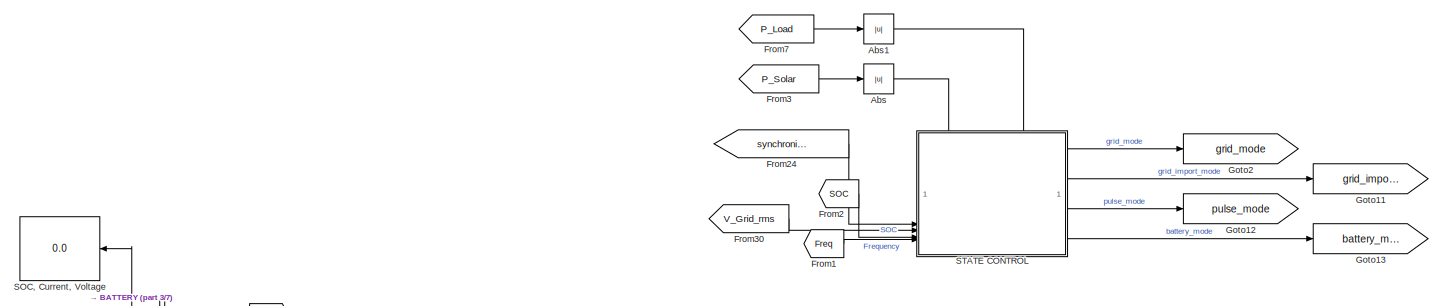
[diagram: root canvas - part 1/7, top center region]
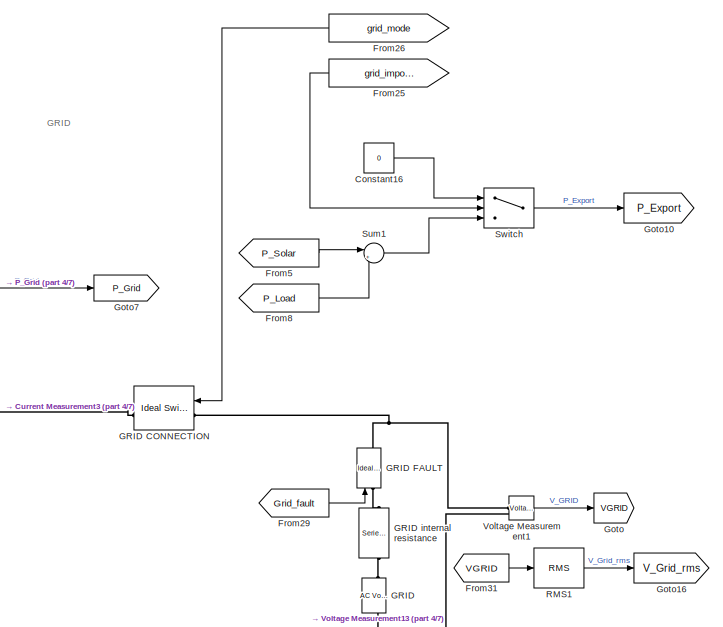
[diagram: root canvas - part 2/7, top right region]
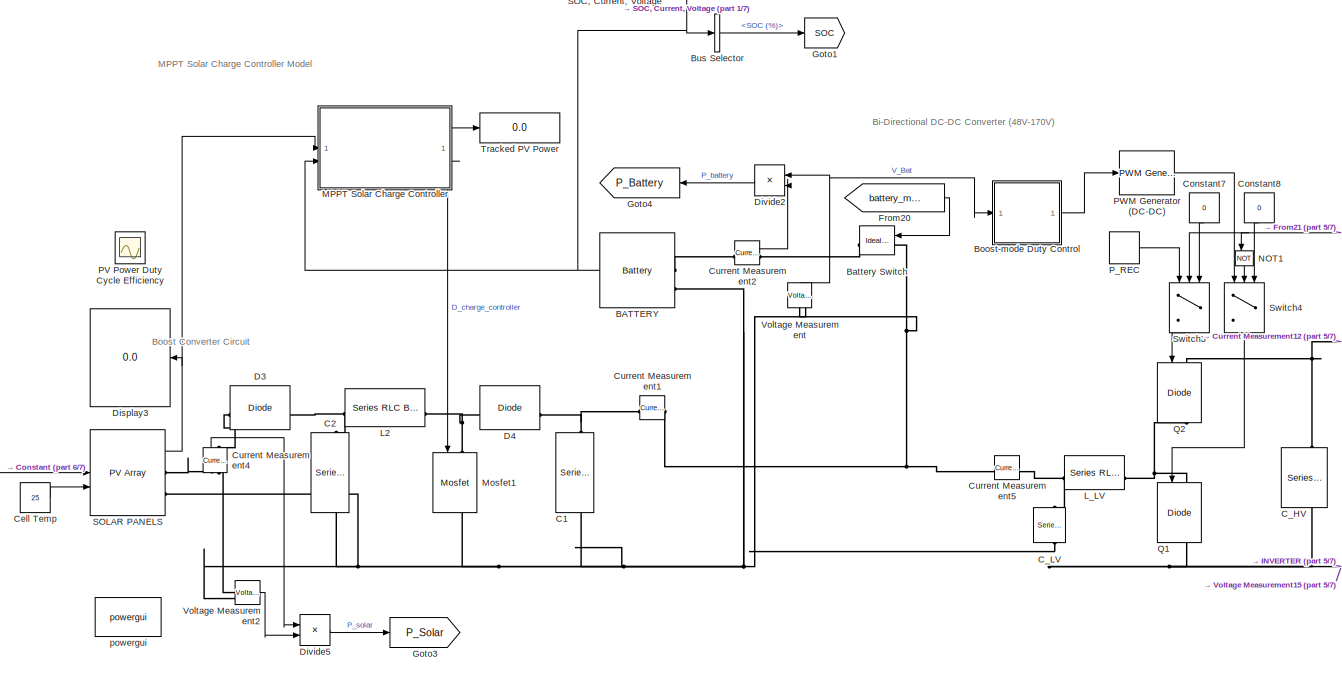
[diagram: root canvas - part 3/7, middle left region]
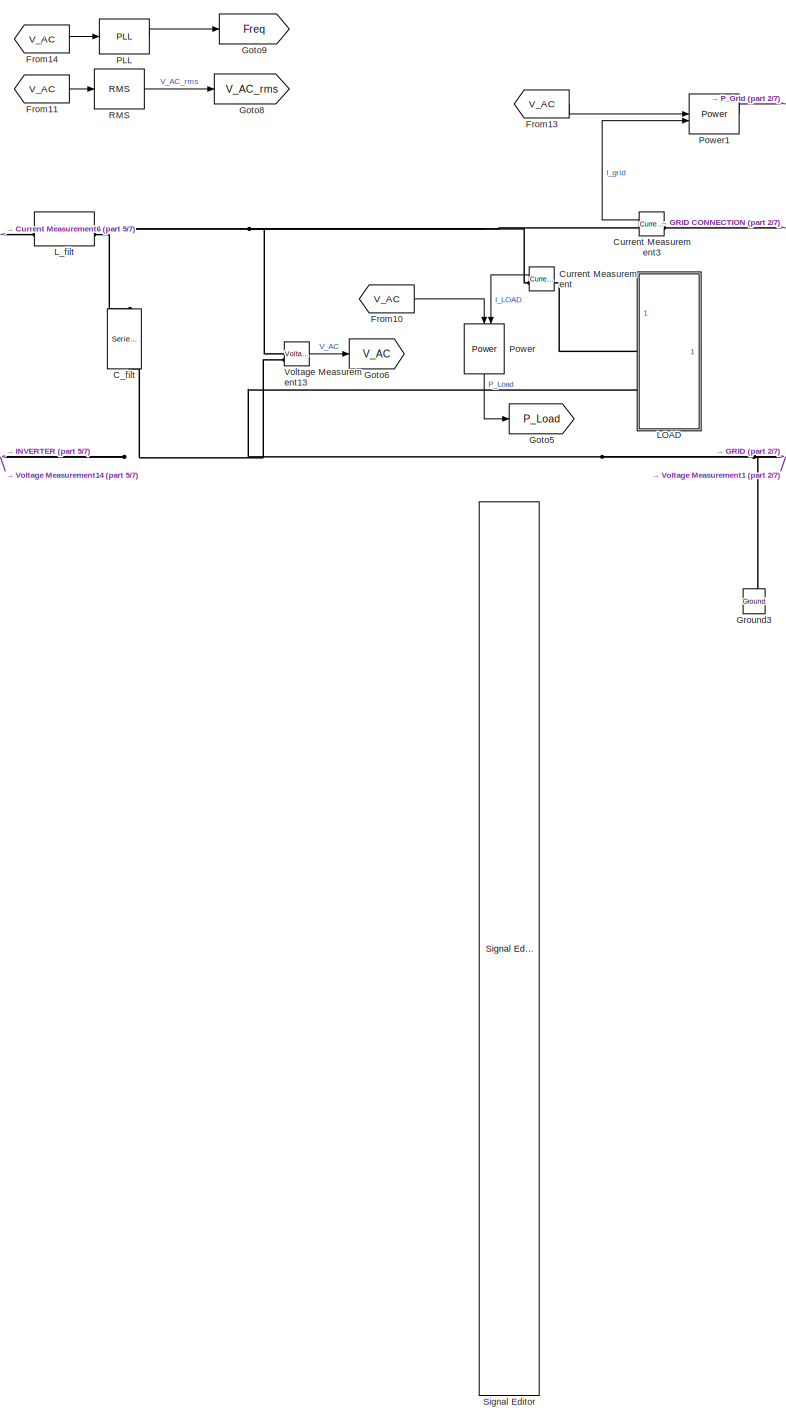
[diagram: root canvas - part 4/7, right side, full height]
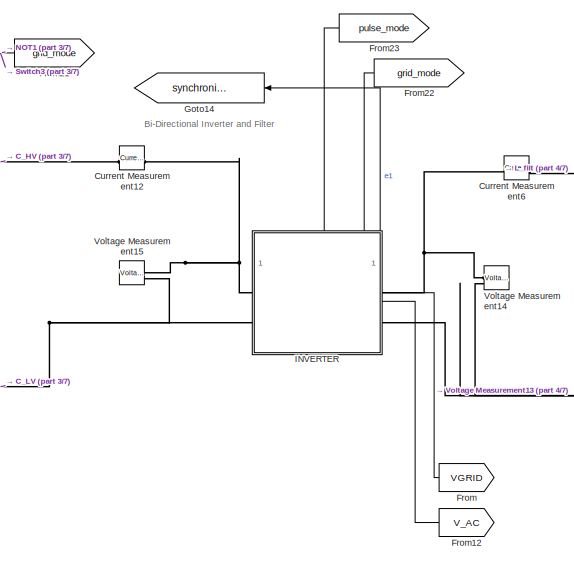
[diagram: root canvas - part 5/7, central region]
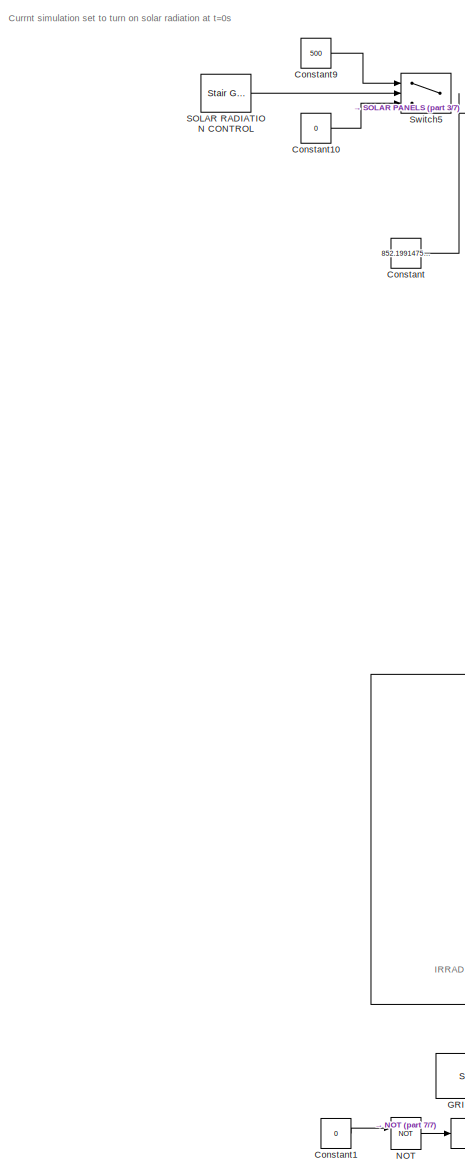
[diagram: root canvas - part 6/7, bottom left region]
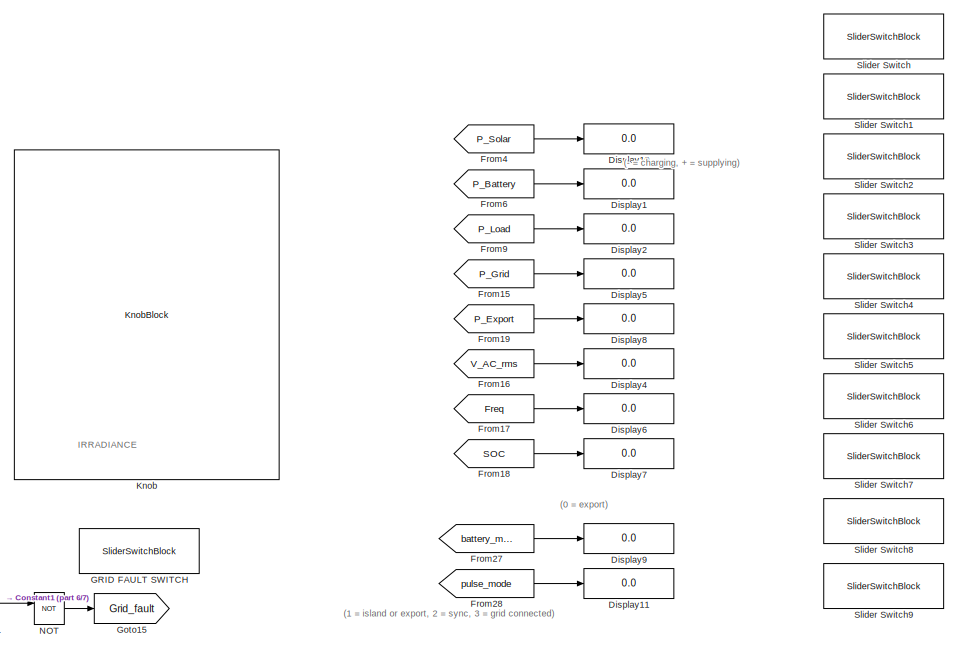
[diagram: root canvas - part 7/7, bottom left region]
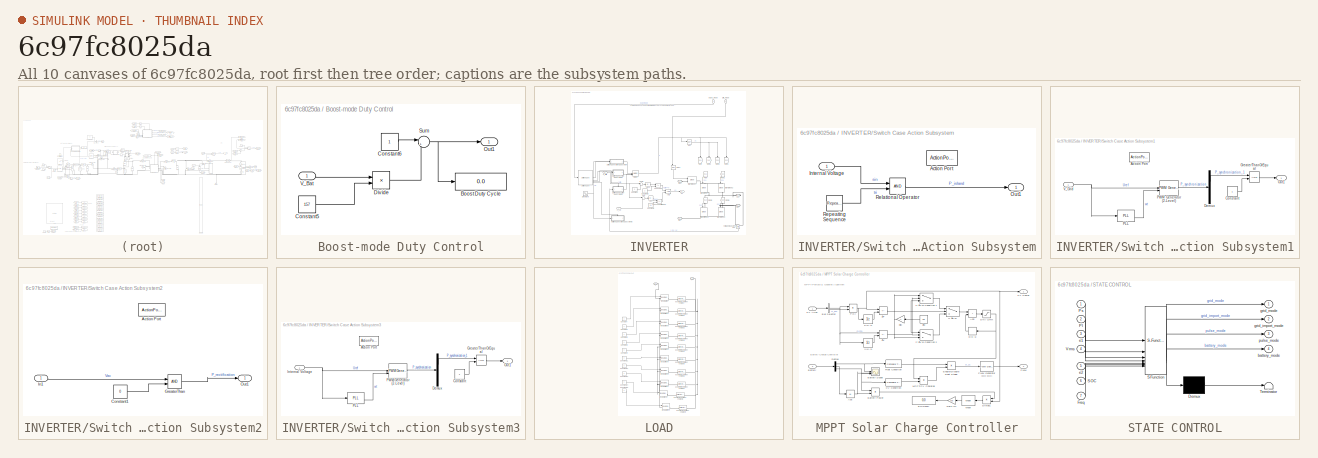
[diagram: thumbnail index - all 10 canvases of the model, root first then tree order]
MODEL slx_6c97fc8025da
KIND model
CONFIG AbsTol = auto
CONFIG EnableMultiTasking = off
CONFIG FixedStep = auto
CONFIG MaxStep = auto
CONFIG MinStep = auto
CONFIG RelTol = 1e-3
CONFIG SampleTimeConstraint = Unconstrained
CONFIG SolverName = VariableStepAuto
CONFIG StartTime = 0.0
CONFIG StopTime = 10.0
BLOCK [Reference]  C1  REF=spsSeriesRLCBranchLib/Series RLC Branch
  LibrarySourceBlock = sps_lib/Passives/Series RLC Branch
  NameLocation = left
  SourceBlock = spsSeriesRLCBranchLib/Series RLC Branch
  SourceType = Series RLC Branch
BLOCK [Abs] Abs
  SaturateOnIntegerOverflow = off
BLOCK [Abs] Abs1
  SaturateOnIntegerOverflow = off
BLOCK [Reference] BATTERY  REF=spsBatteryLib/Battery
  LibrarySourceBlock = electricdrivelib/Extra Sources/Battery
  SourceBlock = spsBatteryLib/Battery
  SourceType = Battery
BLOCK [Reference] Battery Switch  REF=spsIdealSwitchLib/Ideal Switch
  LibrarySourceBlock = sps_lib/Power Electronics/Ideal Switch
  SourceBlock = spsIdealSwitchLib/Ideal Switch
  SourceType = Ideal Switch
BLOCK [SubSystem] Boost-mode Duty Control
BLOCK [Display] Boost-mode Duty Control/Boost Duty Cycle
  Decimation = 1
BLOCK [Constant] Boost-mode Duty Control/Constant5
  Value = 157
BLOCK [Constant] Boost-mode Duty Control/Constant6
BLOCK [Product] Boost-mode Duty Control/Divide
  Inputs = */
BLOCK [Outport] Boost-mode Duty Control/Out1
BLOCK [Sum] Boost-mode Duty Control/Sum
  Inputs = |+-
BLOCK [Inport] Boost-mode Duty Control/V_Bat
BLOCK [BusSelector] Bus Selector
  OutputSignals = SOC (%)
BLOCK [Reference] C2  REF=spsSeriesRLCBranchLib/Series RLC Branch
  LibrarySourceBlock = sps_lib/Passives/Series RLC Branch
  NameLocation = left
  SourceBlock = spsSeriesRLCBranchLib/Series RLC Branch
  SourceType = Series RLC Branch
BLOCK [Reference] C_HV  REF=spsSeriesRLCBranchLib/Series RLC Branch
  LibrarySourceBlock = sps_lib/Passives/Series RLC Branch
  NameLocation = left
  SourceBlock = spsSeriesRLCBranchLib/Series RLC Branch
  SourceType = Series RLC Branch
BLOCK [Reference] C_LV  REF=spsSeriesRLCBranchLib/Series RLC Branch
  LibrarySourceBlock = sps_lib/Passives/Series RLC Branch
  NameLocation = left
  SourceBlock = spsSeriesRLCBranchLib/Series RLC Branch
  SourceType = Series RLC Branch
BLOCK [Reference] C_filt  REF=spsSeriesRLCBranchLib/Series RLC Branch
  LibrarySourceBlock = sps_lib/Passives/Series RLC Branch
  NameLocation = left
  SourceBlock = spsSeriesRLCBranchLib/Series RLC Branch
  SourceType = Series RLC Branch
BLOCK [Constant] Cell Temp
  Value = 25
BLOCK [Constant] Constant
  Value = 852.1991475423177
BLOCK [Constant] Constant1
  Value = 0
BLOCK [Constant] Constant10
  Value = 0
BLOCK [Constant] Constant16
  Value = 0
BLOCK [Constant] Constant7
  NameLocation = left
  Value = 0
BLOCK [Constant] Constant8
  NameLocation = left
  Value = 0
BLOCK [Constant] Constant9
  Value = 500
BLOCK [Reference] Current Measurement  REF=spsCurrentMeasurementLib/Current Measurement
  LibrarySourceBlock = sps_lib/Sensors and Measurements/Current Measurement
  NameLocation = top
  SourceBlock = spsCurrentMeasurementLib/Current Measurement
  SourceType = Current Measurement
  UserDataPersistent = on
BLOCK [Reference] Current Measurement1  REF=spsCurrentMeasurementLib/Current Measurement
  LibrarySourceBlock = sps_lib/Sensors and Measurements/Current Measurement
  SourceBlock = spsCurrentMeasurementLib/Current Measurement
  SourceType = Current Measurement
  UserDataPersistent = on
BLOCK [Reference] Current Measurement12  REF=spsCurrentMeasurementLib/Current Measurement
  LibrarySourceBlock = sps_lib/Sensors and Measurements/Current Measurement
  SourceBlock = spsCurrentMeasurementLib/Current Measurement
  SourceType = Current Measurement
  UserDataPersistent = on
BLOCK [Reference] Current Measurement2  REF=spsCurrentMeasurementLib/Current Measurement
  LibrarySourceBlock = sps_lib/Sensors and Measurements/Current Measurement
  SourceBlock = spsCurrentMeasurementLib/Current Measurement
  SourceType = Current Measurement
  UserDataPersistent = on
BLOCK [Reference] Current Measurement3  REF=spsCurrentMeasurementLib/Current Measurement
  LibrarySourceBlock = sps_lib/Sensors and Measurements/Current Measurement
  NameLocation = top
  SourceBlock = spsCurrentMeasurementLib/Current Measurement
  SourceType = Current Measurement
  UserDataPersistent = on
BLOCK [Reference] Current Measurement4  REF=spsCurrentMeasurementLib/Current Measurement
  LibrarySourceBlock = sps_lib/Sensors and Measurements/Current Measurement
  NameLocation = right
  SourceBlock = spsCurrentMeasurementLib/Current Measurement
  SourceType = Current Measurement
  UserDataPersistent = on
BLOCK [Reference] Current Measurement5  REF=spsCurrentMeasurementLib/Current Measurement
  LibrarySourceBlock = sps_lib/Sensors and Measurements/Current Measurement
  SourceBlock = spsCurrentMeasurementLib/Current Measurement
  SourceType = Current Measurement
  UserDataPersistent = on
BLOCK [Reference] Current Measurement6  REF=spsCurrentMeasurementLib/Current Measurement
  LibrarySourceBlock = sps_lib/Sensors and Measurements/Current Measurement
  SourceBlock = spsCurrentMeasurementLib/Current Measurement
  SourceType = Current Measurement
  UserDataPersistent = on
BLOCK [Reference] D3  REF=spsDiodeLib/Diode
  LibrarySourceBlock = sps_lib/Power Electronics/Diode
  NameLocation = top
  SourceBlock = spsDiodeLib/Diode
  SourceType = Diode
BLOCK [Reference] D4  REF=spsDiodeLib/Diode
  LibrarySourceBlock = sps_lib/Power Electronics/Diode
  SourceBlock = spsDiodeLib/Diode
  SourceType = Diode
BLOCK [Display] Display1
  Decimation = 1
BLOCK [Display] Display10
  Decimation = 1
BLOCK [Display] Display11
  Decimation = 1
BLOCK [Display] Display2
  Decimation = 1
BLOCK [Display] Display3
  Decimation = 1
BLOCK [Display] Display4
  Decimation = 1
BLOCK [Display] Display5
  Decimation = 1
BLOCK [Display] Display6
  Decimation = 1
BLOCK [Display] Display7
  Decimation = 1000
  Format = long
BLOCK [Display] Display8
  Decimation = 1
BLOCK [Display] Display9
  Decimation = 1
BLOCK [Product] Divide2
  Inputs = **
BLOCK [Product] Divide5
  Inputs = **
BLOCK [From] From
  GotoTag = VGRID
  NameLocation = top
BLOCK [From] From1
  GotoTag = Freq
BLOCK [From] From10
  GotoTag = V_AC
BLOCK [From] From11
  GotoTag = V_AC
BLOCK [From] From12
  GotoTag = V_AC
BLOCK [From] From13
  GotoTag = V_AC
BLOCK [From] From14
  GotoTag = V_AC
BLOCK [From] From15
  GotoTag = P_Grid
BLOCK [From] From16
  GotoTag = V_AC_rms
BLOCK [From] From17
  GotoTag = Freq
BLOCK [From] From18
  GotoTag = SOC
BLOCK [From] From19
  GotoTag = P_Export
BLOCK [From] From2
  GotoTag = SOC
BLOCK [From] From20
  GotoTag = battery_mode
BLOCK [From] From21
  GotoTag = grid_mode
BLOCK [From] From22
  GotoTag = grid_mode
BLOCK [From] From23
  GotoTag = pulse_mode
BLOCK [From] From24
  GotoTag = synchronizing_error
BLOCK [From] From25
  GotoTag = grid_import_mode
BLOCK [From] From26
  GotoTag = grid_mode
BLOCK [From] From27
  GotoTag = battery_mode
BLOCK [From] From28
  GotoTag = pulse_mode
BLOCK [From] From29
  GotoTag = Grid_fault
BLOCK [From] From3
  GotoTag = P_Solar
BLOCK [From] From30
  GotoTag = V_Grid_rms
BLOCK [From] From31
  GotoTag = VGRID
BLOCK [From] From4
  GotoTag = P_Solar
BLOCK [From] From5
  GotoTag = P_Solar
BLOCK [From] From6
  GotoTag = P_Battery
BLOCK [From] From7
  GotoTag = P_Load
BLOCK [From] From8
  GotoTag = P_Load
BLOCK [From] From9
  GotoTag = P_Load
BLOCK [Reference] GRID  REF=spsACVoltageSourceLib/AC Voltage Source
  LibrarySourceBlock = sps_lib/Sources/AC Voltage Source
  NameLocation = left
  SourceBlock = spsACVoltageSourceLib/AC Voltage Source
  SourceType = AC Voltage Source
BLOCK [Reference] GRID CONNECTION  REF=spsIdealSwitchLib/Ideal Switch
  LibrarySourceBlock = sps_lib/Power Electronics/Ideal Switch
  SourceBlock = spsIdealSwitchLib/Ideal Switch
  SourceType = Ideal Switch
BLOCK [Reference] GRID FAULT  REF=spsIdealSwitchLib/Ideal Switch
  LibrarySourceBlock = sps_lib/Power Electronics/Ideal Switch
  NameLocation = left
  SourceBlock = spsIdealSwitchLib/Ideal Switch
  SourceType = Ideal Switch
BLOCK [SliderSwitchBlock] GRID FAULT SWITCH
BLOCK [Reference] GRID internal resistance  REF=spsSeriesRLCBranchLib/Series RLC Branch
  LibrarySourceBlock = sps_lib/Passives/Series RLC Branch
  NameLocation = left
  SourceBlock = spsSeriesRLCBranchLib/Series RLC Branch
  SourceType = Series RLC Branch
BLOCK [Goto] Goto
  GotoTag = VGRID
BLOCK [Goto] Goto1
  GotoTag = SOC
BLOCK [Goto] Goto10
  GotoTag = P_Export
BLOCK [Goto] Goto11
  GotoTag = grid_import_mode
BLOCK [Goto] Goto12
  GotoTag = pulse_mode
BLOCK [Goto] Goto13
  GotoTag = battery_mode
BLOCK [Goto] Goto14
  GotoTag = synchronizing_error
BLOCK [Goto] Goto15
  GotoTag = Grid_fault
BLOCK [Goto] Goto16
  GotoTag = V_Grid_rms
BLOCK [Goto] Goto2
  GotoTag = grid_mode
BLOCK [Goto] Goto3
  GotoTag = P_Solar
BLOCK [Goto] Goto4
  GotoTag = P_Battery
BLOCK [Goto] Goto5
  GotoTag = P_Load
BLOCK [Goto] Goto6
  GotoTag = V_AC
BLOCK [Goto] Goto7
  GotoTag = P_Grid
BLOCK [Goto] Goto8
  GotoTag = V_AC_rms
BLOCK [Goto] Goto9
  GotoTag = Freq
BLOCK [Reference] Ground3  REF=spsGroundLib/Ground
  LibrarySourceBlock = sps_lib/Utilities/Ground
  NameLocation = right
  SourceBlock = spsGroundLib/Ground
  SourceType = Ground
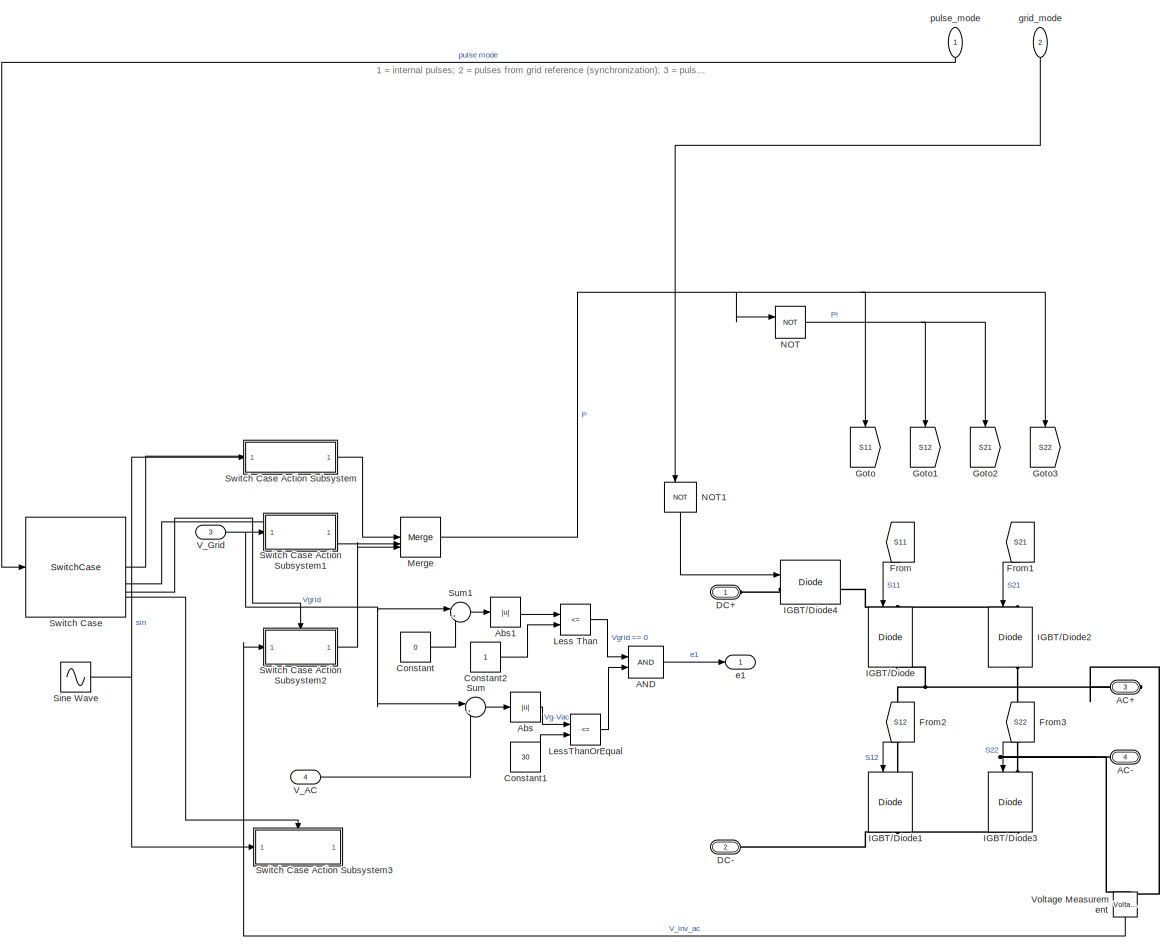
[diagram: INVERTER - part 1/1, most of the canvas]
BLOCK [SubSystem] INVERTER
  PortSchema = {"entries":[{"content":{"sides":[{"content":{"connectorIds":["LConn1","LConn2"]},"type":"ConnectorPlacement.EquallySpacedRectSide","uuid":"08b47f30-9f27-435b-83c4-c6fbe942e4e9"},{"content":{"connectorIds":["RConn1","RConn2","In3","In4"],"side":"RIGHT"},"type":"ConnectorPlacement.EquallySpacedRectSide","uuid":"fbea0f57-7dc0-46de-be59-ba0dc15ef90e"},{"content":{"connectorIds":["Out1","In1","In2"],"s...<+293ch>
BLOCK [PMIOPort] INVERTER/AC+
  Port = 3
  Side = Right
BLOCK [PMIOPort] INVERTER/AC-
  Port = 4
  Side = Right
BLOCK [Logic] INVERTER/AND
  AllPortsSameDT = off
  IconShape = distinctive
  OutDataTypeStr = boolean
BLOCK [Abs] INVERTER/Abs
  SaturateOnIntegerOverflow = off
BLOCK [Abs] INVERTER/Abs1
  SaturateOnIntegerOverflow = off
BLOCK [Constant] INVERTER/Constant
  Value = 0
BLOCK [Constant] INVERTER/Constant1
  Value = 30
BLOCK [Constant] INVERTER/Constant2
BLOCK [PMIOPort] INVERTER/DC+
  Side = Left
BLOCK [PMIOPort] INVERTER/DC-
  Port = 2
  Side = Left
BLOCK [From] INVERTER/From
  GotoTag = S11
  NameLocation = left
BLOCK [From] INVERTER/From1
  GotoTag = S21
  NameLocation = left
BLOCK [From] INVERTER/From2
  GotoTag = S12
  NameLocation = left
BLOCK [From] INVERTER/From3
  GotoTag = S22
  NameLocation = left
BLOCK [Goto] INVERTER/Goto
  GotoTag = S11
  NameLocation = left
BLOCK [Goto] INVERTER/Goto1
  GotoTag = S12
  NameLocation = left
BLOCK [Goto] INVERTER/Goto2
  GotoTag = S21
  NameLocation = left
BLOCK [Goto] INVERTER/Goto3
  GotoTag = S22
  NameLocation = left
BLOCK [Reference] INVERTER/IGBT//Diode  REF=spsIGBTDiodeLib/IGBT//Diode
  LibrarySourceBlock = sps_lib/Power Electronics/IGBT//Diode
  NameLocation = left
  SourceBlock = spsIGBTDiodeLib/IGBT//Diode
  SourceType = IGBT/Diode
BLOCK [Reference] INVERTER/IGBT//Diode1  REF=spsIGBTDiodeLib/IGBT//Diode
  LibrarySourceBlock = sps_lib/Power Electronics/IGBT//Diode
  NameLocation = left
  SourceBlock = spsIGBTDiodeLib/IGBT//Diode
  SourceType = IGBT/Diode
BLOCK [Reference] INVERTER/IGBT//Diode2  REF=spsIGBTDiodeLib/IGBT//Diode
  LibrarySourceBlock = sps_lib/Power Electronics/IGBT//Diode
  NameLocation = left
  SourceBlock = spsIGBTDiodeLib/IGBT//Diode
  SourceType = IGBT/Diode
BLOCK [Reference] INVERTER/IGBT//Diode3  REF=spsIGBTDiodeLib/IGBT//Diode
  LibrarySourceBlock = sps_lib/Power Electronics/IGBT//Diode
  NameLocation = left
  SourceBlock = spsIGBTDiodeLib/IGBT//Diode
  SourceType = IGBT/Diode
BLOCK [Reference] INVERTER/IGBT//Diode4  REF=spsIGBTDiodeLib/IGBT//Diode
  LibrarySourceBlock = sps_lib/Power Electronics/IGBT//Diode
  SourceBlock = spsIGBTDiodeLib/IGBT//Diode
  SourceType = IGBT/Diode
BLOCK [RelationalOperator] INVERTER/Less Than
  InputSameDT = off
  Operator = <=
  OutDataTypeStr = boolean
  RndMeth = Simplest
BLOCK [RelationalOperator] INVERTER/LessThanOrEqual
  InputSameDT = off
  Operator = <=
  OutDataTypeStr = boolean
  RndMeth = Simplest
BLOCK [Merge] INVERTER/Merge
  Inputs = 4
BLOCK [Logic] INVERTER/NOT
  AllPortsSameDT = off
  IconShape = distinctive
  Operator = NOT
  OutDataTypeStr = boolean
BLOCK [Logic] INVERTER/NOT1
  AllPortsSameDT = off
  IconShape = distinctive
  NameLocation = left
  Operator = NOT
  OutDataTypeStr = boolean
BLOCK [Sin] INVERTER/Sine Wave
  Frequency = 60*2*pi
  Phase = pi/2
  SampleTime = 0
BLOCK [Sum] INVERTER/Sum
  Inputs = |+-
BLOCK [Sum] INVERTER/Sum1
  Inputs = |+-
BLOCK [SwitchCase] INVERTER/Switch Case
  CaseConditions = {1,2,3,4}
BLOCK [SubSystem] INVERTER/Switch Case Action Subsystem
  TreatAsAtomicUnit = on
BLOCK [ActionPort] INVERTER/Switch Case Action Subsystem/Action Port
  ActionPortLabel = case [ 1 ]:
BLOCK [Inport] INVERTER/Switch Case Action Subsystem/Internal Voltage
BLOCK [Outport] INVERTER/Switch Case Action Subsystem/Out1
BLOCK [RelationalOperator] INVERTER/Switch Case Action Subsystem/Relational Operator
  InputSameDT = off
  OutDataTypeStr = boolean
  RndMeth = Simplest
BLOCK [Reference] INVERTER/Switch Case Action Subsystem/Repeating Sequence  REF=simulink/Sources/Repeating
Sequence
  SourceBlock = simulink/Sources/Repeating\nSequence
  SourceType = Repeating table
BLOCK [SubSystem] INVERTER/Switch Case Action Subsystem1
  TreatAsAtomicUnit = on
BLOCK [ActionPort] INVERTER/Switch Case Action Subsystem1/Action Port
  ActionPortLabel = case [ 2 ]:
BLOCK [Constant] INVERTER/Switch Case Action Subsystem1/Constant
BLOCK [Demux] INVERTER/Switch Case Action Subsystem1/Demux
BLOCK [RelationalOperator] INVERTER/Switch Case Action Subsystem1/GreaterThanOrEqual
  InputSameDT = off
  OutDataTypeStr = boolean
  RndMeth = Simplest
BLOCK [Outport] INVERTER/Switch Case Action Subsystem1/Out1
BLOCK [Reference] INVERTER/Switch Case Action Subsystem1/PLL  REF=spsPLLLib/PLL
  LibrarySourceBlock = sps_lib/Control/PLL
  SourceBlock = spsPLLLib/PLL
  SourceType = PLL
BLOCK [Reference] INVERTER/Switch Case Action Subsystem1/PWM Generator (2-Level)  REF=spsPWMGenerator2LevelLib/PWM Generator
(2-Level)
  LibrarySourceBlock = sps_lib/Power Electronics/Power Electronics Control/PWM Generator\n(2-Level)
  SourceBlock = spsPWMGenerator2LevelLib/PWM Generator\n(2-Level)
  SourceType = PWM Generator (2-Level)
BLOCK [Inport] INVERTER/Switch Case Action Subsystem1/V_Grid
BLOCK [SubSystem] INVERTER/Switch Case Action Subsystem2
  TreatAsAtomicUnit = on
BLOCK [ActionPort] INVERTER/Switch Case Action Subsystem2/Action Port
  ActionPortLabel = case [ 3 ]:
BLOCK [Constant] INVERTER/Switch Case Action Subsystem2/Constant1
  Value = 0
BLOCK [RelationalOperator] INVERTER/Switch Case Action Subsystem2/GreaterThan
  InputSameDT = off
  OutDataTypeStr = boolean
  RndMeth = Simplest
BLOCK [Inport] INVERTER/Switch Case Action Subsystem2/In1
BLOCK [Outport] INVERTER/Switch Case Action Subsystem2/Out1
BLOCK [SubSystem] INVERTER/Switch Case Action Subsystem3
  TreatAsAtomicUnit = on
BLOCK [ActionPort] INVERTER/Switch Case Action Subsystem3/Action Port
  ActionPortLabel = case [ 4 ]:
BLOCK [Constant] INVERTER/Switch Case Action Subsystem3/Constant
BLOCK [Demux] INVERTER/Switch Case Action Subsystem3/Demux
BLOCK [RelationalOperator] INVERTER/Switch Case Action Subsystem3/GreaterThanOrEqual
  InputSameDT = off
  OutDataTypeStr = boolean
  RndMeth = Simplest
BLOCK [Inport] INVERTER/Switch Case Action Subsystem3/Internal Voltage
BLOCK [Outport] INVERTER/Switch Case Action Subsystem3/Out1
BLOCK [Reference] INVERTER/Switch Case Action Subsystem3/PLL  REF=spsPLLLib/PLL
  LibrarySourceBlock = sps_lib/Control/PLL
  SourceBlock = spsPLLLib/PLL
  SourceType = PLL
BLOCK [Reference] INVERTER/Switch Case Action Subsystem3/PWM Generator (2-Level)  REF=spsPWMGenerator2LevelLib/PWM Generator
(2-Level)
  LibrarySourceBlock = sps_lib/Power Electronics/Power Electronics Control/PWM Generator\n(2-Level)
  SourceBlock = spsPWMGenerator2LevelLib/PWM Generator\n(2-Level)
  SourceType = PWM Generator (2-Level)
BLOCK [Inport] INVERTER/V_AC
  Port = 4
BLOCK [Inport] INVERTER/V_Grid
  Port = 3
BLOCK [Reference] INVERTER/Voltage Measurement  REF=spsVoltageMeasurementLib/Voltage Measurement
  LibrarySourceBlock = sps_lib/Sensors and Measurements/Voltage Measurement
  NameLocation = left
  SourceBlock = spsVoltageMeasurementLib/Voltage Measurement
  SourceType = Voltage Measurement
  UserDataPersistent = on
BLOCK [Outport] INVERTER/e1
BLOCK [Inport] INVERTER/grid_mode
  NameLocation = left
  Port = 2
BLOCK [Inport] INVERTER/pulse_mode
  NameLocation = left
BLOCK [KnobBlock] Knob
  ScaleMax = 1000
BLOCK [Reference] L2  REF=spsSeriesRLCBranchLib/Series RLC Branch
  LibrarySourceBlock = sps_lib/Passives/Series RLC Branch
  NameLocation = top
  SourceBlock = spsSeriesRLCBranchLib/Series RLC Branch
  SourceType = Series RLC Branch
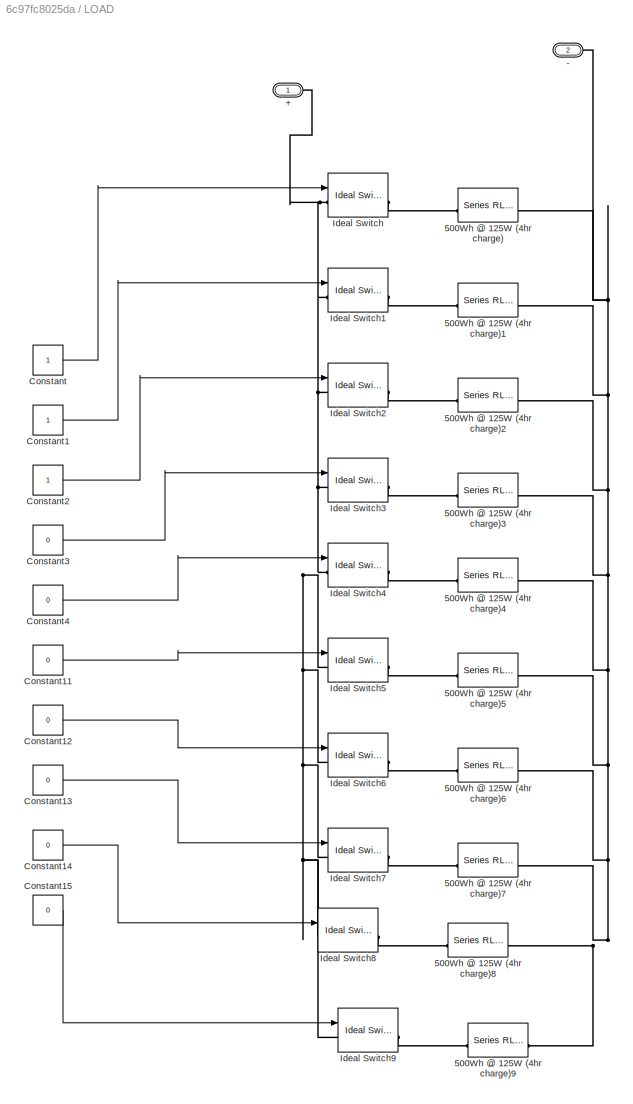
BLOCK [SubSystem] LOAD
BLOCK [PMIOPort] LOAD/+
  Side = Left
BLOCK [PMIOPort] LOAD/-
  Port = 2
  Side = Left
BLOCK [Reference] LOAD/500Wh @ 125W (4hr charge)  REF=spsSeriesRLCBranchLib/Series RLC Branch
  LibrarySourceBlock = sps_lib/Passives/Series RLC Branch
  NameLocation = top
  SourceBlock = spsSeriesRLCBranchLib/Series RLC Branch
  SourceType = Series RLC Branch
BLOCK [Reference] LOAD/500Wh @ 125W (4hr charge)1  REF=spsSeriesRLCBranchLib/Series RLC Branch
  LibrarySourceBlock = sps_lib/Passives/Series RLC Branch
  NameLocation = top
  SourceBlock = spsSeriesRLCBranchLib/Series RLC Branch
  SourceType = Series RLC Branch
BLOCK [Reference] LOAD/500Wh @ 125W (4hr charge)2  REF=spsSeriesRLCBranchLib/Series RLC Branch
  LibrarySourceBlock = sps_lib/Passives/Series RLC Branch
  NameLocation = top
  SourceBlock = spsSeriesRLCBranchLib/Series RLC Branch
  SourceType = Series RLC Branch
BLOCK [Reference] LOAD/500Wh @ 125W (4hr charge)3  REF=spsSeriesRLCBranchLib/Series RLC Branch
  LibrarySourceBlock = sps_lib/Passives/Series RLC Branch
  NameLocation = top
  SourceBlock = spsSeriesRLCBranchLib/Series RLC Branch
  SourceType = Series RLC Branch
BLOCK [Reference] LOAD/500Wh @ 125W (4hr charge)4  REF=spsSeriesRLCBranchLib/Series RLC Branch
  LibrarySourceBlock = sps_lib/Passives/Series RLC Branch
  NameLocation = top
  SourceBlock = spsSeriesRLCBranchLib/Series RLC Branch
  SourceType = Series RLC Branch
BLOCK [Reference] LOAD/500Wh @ 125W (4hr charge)5  REF=spsSeriesRLCBranchLib/Series RLC Branch
  LibrarySourceBlock = sps_lib/Passives/Series RLC Branch
  NameLocation = top
  SourceBlock = spsSeriesRLCBranchLib/Series RLC Branch
  SourceType = Series RLC Branch
BLOCK [Reference] LOAD/500Wh @ 125W (4hr charge)6  REF=spsSeriesRLCBranchLib/Series RLC Branch
  LibrarySourceBlock = sps_lib/Passives/Series RLC Branch
  NameLocation = top
  SourceBlock = spsSeriesRLCBranchLib/Series RLC Branch
  SourceType = Series RLC Branch
BLOCK [Reference] LOAD/500Wh @ 125W (4hr charge)7  REF=spsSeriesRLCBranchLib/Series RLC Branch
  LibrarySourceBlock = sps_lib/Passives/Series RLC Branch
  NameLocation = top
  SourceBlock = spsSeriesRLCBranchLib/Series RLC Branch
  SourceType = Series RLC Branch
BLOCK [Reference] LOAD/500Wh @ 125W (4hr charge)8  REF=spsSeriesRLCBranchLib/Series RLC Branch
  LibrarySourceBlock = sps_lib/Passives/Series RLC Branch
  NameLocation = top
  SourceBlock = spsSeriesRLCBranchLib/Series RLC Branch
  SourceType = Series RLC Branch
BLOCK [Reference] LOAD/500Wh @ 125W (4hr charge)9  REF=spsSeriesRLCBranchLib/Series RLC Branch
  LibrarySourceBlock = sps_lib/Passives/Series RLC Branch
  NameLocation = top
  SourceBlock = spsSeriesRLCBranchLib/Series RLC Branch
  SourceType = Series RLC Branch
BLOCK [Constant] LOAD/Constant
BLOCK [Constant] LOAD/Constant1
BLOCK [Constant] LOAD/Constant11
  Value = 0
BLOCK [Constant] LOAD/Constant12
  Value = 0
BLOCK [Constant] LOAD/Constant13
  Value = 0
BLOCK [Constant] LOAD/Constant14
  Value = 0
BLOCK [Constant] LOAD/Constant15
  Value = 0
BLOCK [Constant] LOAD/Constant2
BLOCK [Constant] LOAD/Constant3
  Value = 0
BLOCK [Constant] LOAD/Constant4
  Value = 0
BLOCK [Reference] LOAD/Ideal Switch  REF=spsIdealSwitchLib/Ideal Switch
  LibrarySourceBlock = sps_lib/Power Electronics/Ideal Switch
  SourceBlock = spsIdealSwitchLib/Ideal Switch
  SourceType = Ideal Switch
BLOCK [Reference] LOAD/Ideal Switch1  REF=spsIdealSwitchLib/Ideal Switch
  LibrarySourceBlock = sps_lib/Power Electronics/Ideal Switch
  SourceBlock = spsIdealSwitchLib/Ideal Switch
  SourceType = Ideal Switch
BLOCK [Reference] LOAD/Ideal Switch2  REF=spsIdealSwitchLib/Ideal Switch
  LibrarySourceBlock = sps_lib/Power Electronics/Ideal Switch
  SourceBlock = spsIdealSwitchLib/Ideal Switch
  SourceType = Ideal Switch
BLOCK [Reference] LOAD/Ideal Switch3  REF=spsIdealSwitchLib/Ideal Switch
  LibrarySourceBlock = sps_lib/Power Electronics/Ideal Switch
  SourceBlock = spsIdealSwitchLib/Ideal Switch
  SourceType = Ideal Switch
BLOCK [Reference] LOAD/Ideal Switch4  REF=spsIdealSwitchLib/Ideal Switch
  LibrarySourceBlock = sps_lib/Power Electronics/Ideal Switch
  SourceBlock = spsIdealSwitchLib/Ideal Switch
  SourceType = Ideal Switch
BLOCK [Reference] LOAD/Ideal Switch5  REF=spsIdealSwitchLib/Ideal Switch
  LibrarySourceBlock = sps_lib/Power Electronics/Ideal Switch
  SourceBlock = spsIdealSwitchLib/Ideal Switch
  SourceType = Ideal Switch
BLOCK [Reference] LOAD/Ideal Switch6  REF=spsIdealSwitchLib/Ideal Switch
  LibrarySourceBlock = sps_lib/Power Electronics/Ideal Switch
  SourceBlock = spsIdealSwitchLib/Ideal Switch
  SourceType = Ideal Switch
BLOCK [Reference] LOAD/Ideal Switch7  REF=spsIdealSwitchLib/Ideal Switch
  LibrarySourceBlock = sps_lib/Power Electronics/Ideal Switch
  SourceBlock = spsIdealSwitchLib/Ideal Switch
  SourceType = Ideal Switch
BLOCK [Reference] LOAD/Ideal Switch8  REF=spsIdealSwitchLib/Ideal Switch
  LibrarySourceBlock = sps_lib/Power Electronics/Ideal Switch
  SourceBlock = spsIdealSwitchLib/Ideal Switch
  SourceType = Ideal Switch
BLOCK [Reference] LOAD/Ideal Switch9  REF=spsIdealSwitchLib/Ideal Switch
  LibrarySourceBlock = sps_lib/Power Electronics/Ideal Switch
  SourceBlock = spsIdealSwitchLib/Ideal Switch
  SourceType = Ideal Switch
BLOCK [Reference] L_LV  REF=spsSeriesRLCBranchLib/Series RLC Branch
  LibrarySourceBlock = sps_lib/Passives/Series RLC Branch
  SourceBlock = spsSeriesRLCBranchLib/Series RLC Branch
  SourceType = Series RLC Branch
BLOCK [Reference] L_filt  REF=spsSeriesRLCBranchLib/Series RLC Branch
  LibrarySourceBlock = sps_lib/Passives/Series RLC Branch
  SourceBlock = spsSeriesRLCBranchLib/Series RLC Branch
  SourceType = Series RLC Branch
BLOCK [SubSystem] MPPT Solar Charge Controller
BLOCK [Gain] MPPT Solar Charge Controller/-∆D
  Gain = -1
BLOCK [Abs] MPPT Solar Charge Controller/Abs
  SaturateOnIntegerOverflow = off
BLOCK [Sum] MPPT Solar Charge Controller/Add
  IconShape = rectangular
BLOCK [Inport] MPPT Solar Charge Controller/Battery
  Port = 2
BLOCK [Product] MPPT Solar Charge Controller/Battery Power
BLOCK [Scope] MPPT Solar Charge Controller/Battery Scope
  Floating = off
  NumInputPorts = 3
  ScopeSpecificationString = Simulink.scopes.TimeScopeBlockCfg('CurrentConfiguration', extmgr.ConfigurationSet(extmgr.Configuration('Core','General UI',true),extmgr.Configuration('Core','Source UI',true),extmgr.Configuration('Sources','WiredSimulink',true,'DataLoggingVariableName','BatteryScope','DataLogging',true,'DataLoggingSaveFormat','Structure'),extmgr.Configuration('Visuals','Time Domain',true,'SerializedDisplays',{stru...<+2724ch>
BLOCK [BusSelector] MPPT Solar Charge Controller/Bus Selector
  OutputSignals = V_PV,I_PV
BLOCK [Reference] MPPT Solar Charge Controller/CV Condition  REF=simulink/Logic and Bit
Operations/Compare
To Constant
  SourceBlock = simulink/Logic and Bit\nOperations/Compare\nTo Constant
  SourceType = Compare To Constant
BLOCK [Saturate] MPPT Solar Charge Controller/D(K) Limit
  LowerLimit = 0.4
  UpperLimit = 0.6
BLOCK [Memory] MPPT Solar Charge Controller/D(K-1)
  InheritSampleTime = on
  InitialCondition = 0.5
  LinearizeAsDelay = on
  LinearizeMemory = on
BLOCK [Demux] MPPT Solar Charge Controller/Demux
  Outputs = 3
BLOCK [Product] MPPT Solar Charge Controller/Divide1
  Inputs = */
BLOCK [Display] MPPT Solar Charge Controller/Efficiency
  Decimation = 1
BLOCK [Product] MPPT Solar Charge Controller/Enable//Disable Float Stage
BLOCK [Reference] MPPT Solar Charge Controller/Float Condition  REF=simulink/Logic and Bit
Operations/Compare
To Constant
  SourceBlock = simulink/Logic and Bit\nOperations/Compare\nTo Constant
  SourceType = Compare To Constant
BLOCK [Gain] MPPT Solar Charge Controller/Gain (%)
  Gain = 100
BLOCK [Product] MPPT Solar Charge Controller/MPPT//CV Charging
BLOCK [Reference] MPPT Solar Charge Controller/Mean  REF=spsMeanLib/Mean
  LibrarySourceBlock = sps_lib/Sensors and Measurements/Mean
  SourceBlock = spsMeanLib/Mean
  SourceType = Mean
BLOCK [Product] MPPT Solar Charge Controller/P(K)
BLOCK [UnitDelay] MPPT Solar Charge Controller/P(K-1)
  HasFrameUpgradeWarning = on
  SampleTime = -1
BLOCK [Inport] MPPT Solar Charge Controller/PV Array
BLOCK [Outport] MPPT Solar Charge Controller/PV Power
  VectorParamsAs1DForOutWhenUnconnected = off
BLOCK [Outport] MPPT Solar Charge Controller/PWM
  Port = 2
  VectorParamsAs1DForOutWhenUnconnected = off
BLOCK [Reference] MPPT Solar Charge Controller/PWM Generator (DC-DC)  REF=spsPWMGeneratorDCDCLib/PWM Generator
(DC-DC)
  LibrarySourceBlock = sps_lib/Power Electronics/Power Electronics Control/PWM Generator\n(DC-DC)
  SourceBlock = spsPWMGeneratorDCDCLib/PWM Generator\n(DC-DC)
  SourceType = PWM Generator (DC-DC)
BLOCK [UnitDelay] MPPT Solar Charge Controller/V(K-1)
  HasFrameUpgradeWarning = on
  SampleTime = -1
BLOCK [Switch] MPPT Solar Charge Controller/if ∆P>0
  Criteria = u2 > Threshold
  InputSameDT = off
  SaturateOnIntegerOverflow = off
BLOCK [Switch] MPPT Solar Charge Controller/if ∆V>0 Condition 1
  Criteria = u2 > Threshold
  InputSameDT = off
  SaturateOnIntegerOverflow = off
BLOCK [Switch] MPPT Solar Charge Controller/if ∆V>0 Condition 2
  Criteria = u2 > Threshold
  InputSameDT = off
  SaturateOnIntegerOverflow = off
BLOCK [Constant] MPPT Solar Charge Controller/∆D
  Value = dD
BLOCK [Sum] MPPT Solar Charge Controller/∆P
  IconShape = rectangular
  Inputs = +-
BLOCK [Sum] MPPT Solar Charge Controller/∆V
  IconShape = rectangular
  Inputs = +-
BLOCK [Reference] Mosfet1  REF=spsMosfetLib/Mosfet
  LibrarySourceBlock = sps_lib/Power Electronics/Mosfet
  NameLocation = left
  SourceBlock = spsMosfetLib/Mosfet
  SourceType = Mosfet
BLOCK [Logic] NOT
  AllPortsSameDT = off
  IconShape = distinctive
  Operator = NOT
  OutDataTypeStr = boolean
BLOCK [Logic] NOT1
  AllPortsSameDT = off
  IconShape = distinctive
  NameLocation = left
  Operator = NOT
  OutDataTypeStr = boolean
BLOCK [Reference] PLL  REF=spsPLLLib/PLL
  LibrarySourceBlock = sps_lib/Control/PLL
  SourceBlock = spsPLLLib/PLL
  SourceType = PLL
BLOCK [Scope] PV Power Duty Cycle Efficiency
  Floating = on
  NumInputPorts = 1
  ScopeSpecificationString = Simulink.scopes.TimeScopeBlockCfg('CurrentConfiguration', extmgr.ConfigurationSet(extmgr.Configuration('Core','General UI',true),extmgr.Configuration('Core','Source UI',true),extmgr.Configuration('Sources','WiredSimulink',true,'DataLoggingVariableName','ScopeData1'),extmgr.Configuration('Visuals','Time Domain',true,'SerializedDisplays',{struct('MinYLimReal','-252.3688','MaxYLimReal','2273.82732','...<+2713ch>
BLOCK [Reference] PWM Generator (DC-DC)  REF=spsPWMGeneratorDCDCLib/PWM Generator
(DC-DC)
  LibrarySourceBlock = sps_lib/Power Electronics/Power Electronics Control/PWM Generator\n(DC-DC)
  SourceBlock = spsPWMGeneratorDCDCLib/PWM Generator\n(DC-DC)
  SourceType = PWM Generator (DC-DC)
BLOCK [DiscretePulseGenerator] P_REC
  Period = 1/5000
  PulseType = Time based
  PulseWidth = 26
BLOCK [Reference] Power  REF=spsPowerLib/Power
  LibrarySourceBlock = sps_lib/Sensors and Measurements/Power
  NameLocation = right
  SourceBlock = spsPowerLib/Power
  SourceType = Power
BLOCK [Reference] Power1  REF=spsPowerLib/Power
  LibrarySourceBlock = sps_lib/Sensors and Measurements/Power
  SourceBlock = spsPowerLib/Power
  SourceType = Power
BLOCK [Reference] Q1  REF=spsIGBTDiodeLib/IGBT//Diode
  LibrarySourceBlock = sps_lib/Power Electronics/IGBT//Diode
  NameLocation = left
  SourceBlock = spsIGBTDiodeLib/IGBT//Diode
  SourceType = IGBT/Diode
BLOCK [Reference] Q2  REF=spsIGBTDiodeLib/IGBT//Diode
  LibrarySourceBlock = sps_lib/Power Electronics/IGBT//Diode
  NameLocation = left
  SourceBlock = spsIGBTDiodeLib/IGBT//Diode
  SourceType = IGBT/Diode
BLOCK [Reference] RMS  REF=spsRMSLib/RMS
  LibrarySourceBlock = sps_lib/Sensors and Measurements/RMS
  SourceBlock = spsRMSLib/RMS
  SourceType = RMS
BLOCK [Reference] RMS1  REF=spsRMSLib/RMS
  LibrarySourceBlock = sps_lib/Sensors and Measurements/RMS
  SourceBlock = spsRMSLib/RMS
  SourceType = RMS
BLOCK [Display] SOC, Current, Voltage
  Decimation = 1
BLOCK [Reference] SOLAR PANELS  REF=spsPVArrayLib/PV Array
  LibrarySourceBlock = sps_lib/Sources/PV Array
  SourceBlock = spsPVArrayLib/PV Array
  SourceType = PV array
BLOCK [Reference] SOLAR RADIATION CONTROL  REF=spsStairGeneratorLib/Stair
Generator
  LibrarySourceBlock = sps_lib/Sources/Signal Generator Sources/Stair\nGenerator
  SourceBlock = spsStairGeneratorLib/Stair\nGenerator
  SourceType = Stair Generator
BLOCK [SubSystem] STATE CONTROL
  ErrorFcn = Stateflow.Translate.translate
  PermitHierarchicalResolution = ExplicitOnly
  PortSchema = {"entries":[{"content":{"sides":[{"content":{"connectorIds":["In3","In5","In6","In4","In7"]},"type":"ConnectorPlacement.EquallySpacedRectSide","uuid":"b48b8e79-9223-4f44-9ca2-01abafb2610b"},{"content":{"connectorIds":["Out1","Out2","Out3","Out4"],"side":"RIGHT"},"type":"ConnectorPlacement.EquallySpacedRectSide","uuid":"69043a30-cfac-4fa3-beb1-dafea7c61121"},{"content":{"connectorIds":["In1","In2"]...<+296ch>
  SFBlockType = Chart
  TreatAsAtomicUnit = on
BLOCK [Demux] STATE CONTROL/ Demux 
  Outputs = 1
BLOCK [S-Function] STATE CONTROL/ SFunction 
  EnableBusSupport = on
  FunctionName = sf_sfun
  PortCounts = [7 5]
  SFcnIsStateOwnerBlock = off
  SFunctionDeploymentMode = off
  Tag = Stateflow S-Function 3
BLOCK [Terminator] STATE CONTROL/ Terminator 
BLOCK [Inport] STATE CONTROL/Freq
  Port = 7
BLOCK [Inport] STATE CONTROL/Pl
  Port = 2
BLOCK [Inport] STATE CONTROL/Ps
BLOCK [Inport] STATE CONTROL/SOC
  Port = 6
BLOCK [Inport] STATE CONTROL/Vrms
  Port = 4
BLOCK [Outport] STATE CONTROL/battery_mode
  Port = 4
BLOCK [Inport] STATE CONTROL/e1
  Port = 3
BLOCK [Inport] STATE CONTROL/e2
  Port = 5
BLOCK [Outport] STATE CONTROL/grid_import_mode
  Port = 2
BLOCK [Outport] STATE CONTROL/grid_mode
BLOCK [Outport] STATE CONTROL/pulse_mode
  Port = 3
BLOCK [Reference] Signal Editor  REF=SignalEditorBlockLib/Signal Editor
  Commented = on
  LibrarySourceBlock = simulink/Sources/Signal Editor
  SourceBlock = SignalEditorBlockLib/Signal Editor
  SourceType = SignalEditor
  UserDataPersistent = on
BLOCK [SliderSwitchBlock] Slider Switch
BLOCK [SliderSwitchBlock] Slider Switch1
BLOCK [SliderSwitchBlock] Slider Switch2
BLOCK [SliderSwitchBlock] Slider Switch3
BLOCK [SliderSwitchBlock] Slider Switch4
BLOCK [SliderSwitchBlock] Slider Switch5
BLOCK [SliderSwitchBlock] Slider Switch6
BLOCK [SliderSwitchBlock] Slider Switch7
BLOCK [SliderSwitchBlock] Slider Switch8
BLOCK [SliderSwitchBlock] Slider Switch9
BLOCK [Sum] Sum1
  Inputs = |++
BLOCK [Switch] Switch
  Criteria = u2 > Threshold
  InputSameDT = off
  SaturateOnIntegerOverflow = off
BLOCK [Switch] Switch3
  Criteria = u2 > Threshold
  InputSameDT = off
  NameLocation = left
  SaturateOnIntegerOverflow = off
BLOCK [Switch] Switch4
  Criteria = u2 > Threshold
  InputSameDT = off
  NameLocation = left
  SaturateOnIntegerOverflow = off
BLOCK [Switch] Switch5
  InputSameDT = off
  SaturateOnIntegerOverflow = off
  Threshold = 1
BLOCK [Display] Tracked PV Power
  Decimation = 1
BLOCK [Reference] Voltage Measurement  REF=spsVoltageMeasurementLib/Voltage Measurement
  LibrarySourceBlock = sps_lib/Sensors and Measurements/Voltage Measurement
  NameLocation = right
  SourceBlock = spsVoltageMeasurementLib/Voltage Measurement
  SourceType = Voltage Measurement
  UserDataPersistent = on
BLOCK [Reference] Voltage Measurement1  REF=spsVoltageMeasurementLib/Voltage Measurement
  LibrarySourceBlock = sps_lib/Sensors and Measurements/Voltage Measurement
  SourceBlock = spsVoltageMeasurementLib/Voltage Measurement
  SourceType = Voltage Measurement
  UserDataPersistent = on
BLOCK [Reference] Voltage Measurement13  REF=spsVoltageMeasurementLib/Voltage Measurement
  LibrarySourceBlock = sps_lib/Sensors and Measurements/Voltage Measurement
  SourceBlock = spsVoltageMeasurementLib/Voltage Measurement
  SourceType = Voltage Measurement
  UserDataPersistent = on
BLOCK [Reference] Voltage Measurement14  REF=spsVoltageMeasurementLib/Voltage Measurement
  LibrarySourceBlock = sps_lib/Sensors and Measurements/Voltage Measurement
  SourceBlock = spsVoltageMeasurementLib/Voltage Measurement
  SourceType = Voltage Measurement
  UserDataPersistent = on
BLOCK [Reference] Voltage Measurement15  REF=spsVoltageMeasurementLib/Voltage Measurement
  LibrarySourceBlock = sps_lib/Sensors and Measurements/Voltage Measurement
  SourceBlock = spsVoltageMeasurementLib/Voltage Measurement
  SourceType = Voltage Measurement
  UserDataPersistent = on
BLOCK [Reference] Voltage Measurement2  REF=spsVoltageMeasurementLib/Voltage Measurement
  LibrarySourceBlock = sps_lib/Sensors and Measurements/Voltage Measurement
  SourceBlock = spsVoltageMeasurementLib/Voltage Measurement
  SourceType = Voltage Measurement
  UserDataPersistent = on
BLOCK [Reference] powergui  REF=sps_lib/powergui
  LibrarySourceBlock = sps_lib/powergui
  Priority = 1
  SourceBlock = sps_lib/powergui
  SourceType = PSB option menu block
ANNOTATION (root): (- = charging, + = supplying)
ANNOTATION (root): (0 = export)
ANNOTATION (root): (1 = island or export, 2 = sync, 3 = grid connected)
ANNOTATION (root): Bi-Directional DC-DC Converter (48V-170V)
ANNOTATION (root): Bi-Directional Inverter and Filter
ANNOTATION (root): Boost Converter Circuit
ANNOTATION (root): Currnt simulation set to turn on solar radiation at t=0s
ANNOTATION (root): GRID
ANNOTATION (root): IRRADIANCE
ANNOTATION (root): MPPT Solar Charge Controller Model
ANNOTATION INVERTER: 1 = internal pulses; 2 = pulses from grid reference (synchronization); 3 = pulses for rectification; 4 = pulses from internal reference (de-synchronization)
ANNOTATION MPPT Solar Charge Controller: Battery Charge Controller
ANNOTATION MPPT Solar Charge Controller: MPPT Perturb & Observe Algorithm
LINE Abs1:1 -> STATE CONTROL:2
LINE Abs:1 -> STATE CONTROL:1
NET BATTERY:1 -> Bus Selector:1, MPPT Solar Charge Controller:2, SOC, Current, Voltage:1
LINE Boost-mode Duty Control/Constant5:1 -> Boost-mode Duty Control/Divide:2
LINE Boost-mode Duty Control/Constant6:1 -> Boost-mode Duty Control/Sum:1
LINE Boost-mode Duty Control/Divide:1 -> Boost-mode Duty Control/Sum:2
NET Boost-mode Duty Control/Sum:1 -> Boost-mode Duty Control/Boost Duty Cycle:1, Boost-mode Duty Control/Out1:1
LINE Boost-mode Duty Control/V_Bat:1 -> Boost-mode Duty Control/Divide:1
LINE Boost-mode Duty Control:1 -> PWM Generator (DC-DC):1
LINE Bus Selector:1 -> Goto1:1
LINE Cell Temp:1 -> SOLAR PANELS:2
LINE Constant10:1 -> Switch5:3
LINE Constant16:1 -> Switch:1
LINE Constant1:1 -> NOT:1
LINE Constant7:1 -> Switch3:3
LINE Constant8:1 -> Switch4:3
LINE Constant9:1 -> Switch5:1
LINE Constant:1 -> SOLAR PANELS:1
LINE Current Measurement2:1 -> Divide2:2
LINE Current Measurement3:1 -> Power1:2
LINE Current Measurement4:1 -> Divide5:1
LINE Current Measurement:1 -> Power:2
LINE Divide2:1 -> Goto4:1
LINE Divide5:1 -> Goto3:1
LINE From10:1 -> Power:1
LINE From11:1 -> RMS:1
LINE From12:1 -> INVERTER:4
LINE From13:1 -> Power1:1
LINE From14:1 -> PLL:1
LINE From15:1 -> Display5:1
LINE From16:1 -> Display4:1
LINE From17:1 -> Display6:1
LINE From18:1 -> Display7:1
LINE From19:1 -> Display8:1
LINE From1:1 -> STATE CONTROL:7
LINE From20:1 -> Battery Switch:1
NET From21:1 -> NOT1:1, Switch3:2
LINE From22:1 -> INVERTER:2
LINE From23:1 -> INVERTER:1
LINE From24:1 -> STATE CONTROL:3
LINE From25:1 -> Switch:2
LINE From26:1 -> GRID CONNECTION:1
LINE From27:1 -> Display9:1
LINE From28:1 -> Display11:1
LINE From29:1 -> GRID FAULT:1
LINE From2:1 -> STATE CONTROL:6
LINE From30:1 -> STATE CONTROL:4
LINE From31:1 -> RMS1:1
LINE From3:1 -> Abs:1
LINE From4:1 -> Display10:1
LINE From5:1 -> Sum1:1
LINE From6:1 -> Display1:1
LINE From7:1 -> Abs1:1
LINE From8:1 -> Sum1:2
LINE From9:1 -> Display2:1
LINE From:1 -> INVERTER:3
LINE INVERTER/AND:1 -> INVERTER/e1:1
LINE INVERTER/Abs1:1 -> INVERTER/Less Than:1
LINE INVERTER/Abs:1 -> INVERTER/LessThanOrEqual:1
LINE INVERTER/Constant1:1 -> INVERTER/LessThanOrEqual:2
LINE INVERTER/Constant2:1 -> INVERTER/Less Than:2
LINE INVERTER/Constant:1 -> INVERTER/Sum1:2
LINE INVERTER/From1:1 -> INVERTER/IGBT//Diode2:1
LINE INVERTER/From2:1 -> INVERTER/IGBT//Diode1:1
LINE INVERTER/From3:1 -> INVERTER/IGBT//Diode3:1
LINE INVERTER/From:1 -> INVERTER/IGBT//Diode:1
LINE INVERTER/Less Than:1 -> INVERTER/AND:1
LINE INVERTER/LessThanOrEqual:1 -> INVERTER/AND:2
NET INVERTER/Merge:1 -> INVERTER/Goto3:1, INVERTER/Goto:1, INVERTER/NOT:1
LINE INVERTER/NOT1:1 -> INVERTER/IGBT//Diode4:1
NET INVERTER/NOT:1 -> INVERTER/Goto1:1, INVERTER/Goto2:1
NET INVERTER/Sine Wave:1 -> INVERTER/Switch Case Action Subsystem3:1, INVERTER/Switch Case Action Subsystem:1
LINE INVERTER/Sum1:1 -> INVERTER/Abs1:1
LINE INVERTER/Sum:1 -> INVERTER/Abs:1
LINE INVERTER/Switch Case Action Subsystem/Internal Voltage:1 -> INVERTER/Switch Case Action Subsystem/Relational Operator:1
LINE INVERTER/Switch Case Action Subsystem/Relational Operator:1 -> INVERTER/Switch Case Action Subsystem/Out1:1
LINE INVERTER/Switch Case Action Subsystem/Repeating Sequence:1 -> INVERTER/Switch Case Action Subsystem/Relational Operator:2
LINE INVERTER/Switch Case Action Subsystem1/Constant:1 -> INVERTER/Switch Case Action Subsystem1/GreaterThanOrEqual:2
LINE INVERTER/Switch Case Action Subsystem1/Demux:1 -> INVERTER/Switch Case Action Subsystem1/GreaterThanOrEqual:1
LINE INVERTER/Switch Case Action Subsystem1/GreaterThanOrEqual:1 -> INVERTER/Switch Case Action Subsystem1/Out1:1
LINE INVERTER/Switch Case Action Subsystem1/PLL:2 -> INVERTER/Switch Case Action Subsystem1/PWM Generator (2-Level):2
LINE INVERTER/Switch Case Action Subsystem1/PWM Generator (2-Level):1 -> INVERTER/Switch Case Action Subsystem1/Demux:1
NET INVERTER/Switch Case Action Subsystem1/V_Grid:1 -> INVERTER/Switch Case Action Subsystem1/PLL:1, INVERTER/Switch Case Action Subsystem1/PWM Generator (2-Level):1
LINE INVERTER/Switch Case Action Subsystem1:1 -> INVERTER/Merge:2
LINE INVERTER/Switch Case Action Subsystem2/Constant1:1 -> INVERTER/Switch Case Action Subsystem2/GreaterThan:2
LINE INVERTER/Switch Case Action Subsystem2/GreaterThan:1 -> INVERTER/Switch Case Action Subsystem2/Out1:1
LINE INVERTER/Switch Case Action Subsystem2/In1:1 -> INVERTER/Switch Case Action Subsystem2/GreaterThan:1
LINE INVERTER/Switch Case Action Subsystem2:1 -> INVERTER/Merge:3
LINE INVERTER/Switch Case Action Subsystem3/Constant:1 -> INVERTER/Switch Case Action Subsystem3/GreaterThanOrEqual:2
LINE INVERTER/Switch Case Action Subsystem3/Demux:1 -> INVERTER/Switch Case Action Subsystem3/GreaterThanOrEqual:1
LINE INVERTER/Switch Case Action Subsystem3/GreaterThanOrEqual:1 -> INVERTER/Switch Case Action Subsystem3/Out1:1
NET INVERTER/Switch Case Action Subsystem3/Internal Voltage:1 -> INVERTER/Switch Case Action Subsystem3/PLL:1, INVERTER/Switch Case Action Subsystem3/PWM Generator (2-Level):1
LINE INVERTER/Switch Case Action Subsystem3/PLL:2 -> INVERTER/Switch Case Action Subsystem3/PWM Generator (2-Level):2
LINE INVERTER/Switch Case Action Subsystem3/PWM Generator (2-Level):1 -> INVERTER/Switch Case Action Subsystem3/Demux:1
LINE INVERTER/Switch Case Action Subsystem:1 -> INVERTER/Merge:1
LINE INVERTER/Switch Case:1 -> INVERTER/Switch Case Action Subsystem:ifaction
LINE INVERTER/Switch Case:2 -> INVERTER/Switch Case Action Subsystem1:ifaction
LINE INVERTER/Switch Case:3 -> INVERTER/Switch Case Action Subsystem2:ifaction
LINE INVERTER/Switch Case:4 -> INVERTER/Switch Case Action Subsystem3:ifaction
LINE INVERTER/V_AC:1 -> INVERTER/Sum:2
NET INVERTER/V_Grid:1 -> INVERTER/Sum1:1, INVERTER/Sum:1, INVERTER/Switch Case Action Subsystem1:1
LINE INVERTER/Voltage Measurement:1 -> INVERTER/Switch Case Action Subsystem2:1
LINE INVERTER/grid_mode:1 -> INVERTER/NOT1:1
LINE INVERTER/pulse_mode:1 -> INVERTER/Switch Case:1
LINE INVERTER:1 -> Goto14:1
LINE LOAD/Constant11:1 -> LOAD/Ideal Switch5:1
LINE LOAD/Constant12:1 -> LOAD/Ideal Switch6:1
LINE LOAD/Constant13:1 -> LOAD/Ideal Switch7:1
LINE LOAD/Constant14:1 -> LOAD/Ideal Switch8:1
LINE LOAD/Constant15:1 -> LOAD/Ideal Switch9:1
LINE LOAD/Constant1:1 -> LOAD/Ideal Switch1:1
LINE LOAD/Constant2:1 -> LOAD/Ideal Switch2:1
LINE LOAD/Constant3:1 -> LOAD/Ideal Switch3:1
LINE LOAD/Constant4:1 -> LOAD/Ideal Switch4:1
LINE LOAD/Constant:1 -> LOAD/Ideal Switch:1
NET MPPT Solar Charge Controller/-∆D:1 -> MPPT Solar Charge Controller/if ∆V>0 Condition 1:1, MPPT Solar Charge Controller/if ∆V>0 Condition 2:3
NET MPPT Solar Charge Controller/Abs:1 -> MPPT Solar Charge Controller/Battery Power:2, MPPT Solar Charge Controller/Battery Scope:2
LINE MPPT Solar Charge Controller/Add:1 -> MPPT Solar Charge Controller/D(K) Limit:1
LINE MPPT Solar Charge Controller/Battery Power:1 -> MPPT Solar Charge Controller/Divide1:1
LINE MPPT Solar Charge Controller/Battery:1 -> MPPT Solar Charge Controller/Demux:1
NET MPPT Solar Charge Controller/Bus Selector:1 -> MPPT Solar Charge Controller/P(K):1, MPPT Solar Charge Controller/V(K-1):1, MPPT Solar Charge Controller/∆V:1
LINE MPPT Solar Charge Controller/Bus Selector:2 -> MPPT Solar Charge Controller/P(K):2
LINE MPPT Solar Charge Controller/CV Condition:1 -> MPPT Solar Charge Controller/MPPT//CV Charging:2
NET MPPT Solar Charge Controller/D(K) Limit:1 -> MPPT Solar Charge Controller/D(K-1):1, MPPT Solar Charge Controller/MPPT//CV Charging:1
LINE MPPT Solar Charge Controller/D(K-1):1 -> MPPT Solar Charge Controller/Add:2
NET MPPT Solar Charge Controller/Demux:1 -> MPPT Solar Charge Controller/Battery Scope:1, MPPT Solar Charge Controller/Float Condition:1
LINE MPPT Solar Charge Controller/Demux:2 -> MPPT Solar Charge Controller/Abs:1
NET MPPT Solar Charge Controller/Demux:3 -> MPPT Solar Charge Controller/Battery Power:1, MPPT Solar Charge Controller/Battery Scope:3, MPPT Solar Charge Controller/CV Condition:1
LINE MPPT Solar Charge Controller/Divide1:1 -> MPPT Solar Charge Controller/Mean:1
LINE MPPT Solar Charge Controller/Enable//Disable Float Stage:1 -> MPPT Solar Charge Controller/PWM Generator (DC-DC):1
LINE MPPT Solar Charge Controller/Float Condition:1 -> MPPT Solar Charge Controller/Enable//Disable Float Stage:1
LINE MPPT Solar Charge Controller/Gain (%):1 -> MPPT Solar Charge Controller/Efficiency:1
LINE MPPT Solar Charge Controller/MPPT//CV Charging:1 -> MPPT Solar Charge Controller/Enable//Disable Float Stage:2
LINE MPPT Solar Charge Controller/Mean:1 -> MPPT Solar Charge Controller/Gain (%):1
NET MPPT Solar Charge Controller/P(K):1 -> MPPT Solar Charge Controller/Divide1:2, MPPT Solar Charge Controller/P(K-1):1, MPPT Solar Charge Controller/PV Power:1, MPPT Solar Charge Controller/∆P:1
LINE MPPT Solar Charge Controller/P(K-1):1 -> MPPT Solar Charge Controller/∆P:2
LINE MPPT Solar Charge Controller/PV Array:1 -> MPPT Solar Charge Controller/Bus Selector:1
LINE MPPT Solar Charge Controller/PWM Generator (DC-DC):1 -> MPPT Solar Charge Controller/PWM:1
LINE MPPT Solar Charge Controller/V(K-1):1 -> MPPT Solar Charge Controller/∆V:2
LINE MPPT Solar Charge Controller/if ∆P>0:1 -> MPPT Solar Charge Controller/Add:1
LINE MPPT Solar Charge Controller/if ∆V>0 Condition 1:1 -> MPPT Solar Charge Controller/if ∆P>0:1
LINE MPPT Solar Charge Controller/if ∆V>0 Condition 2:1 -> MPPT Solar Charge Controller/if ∆P>0:3
NET MPPT Solar Charge Controller/∆D:1 -> MPPT Solar Charge Controller/-∆D:1, MPPT Solar Charge Controller/if ∆V>0 Condition 1:3, MPPT Solar Charge Controller/if ∆V>0 Condition 2:1
LINE MPPT Solar Charge Controller/∆P:1 -> MPPT Solar Charge Controller/if ∆P>0:2
NET MPPT Solar Charge Controller/∆V:1 -> MPPT Solar Charge Controller/if ∆V>0 Condition 1:2, MPPT Solar Charge Controller/if ∆V>0 Condition 2:2
LINE MPPT Solar Charge Controller:1 -> Tracked PV Power:1
LINE MPPT Solar Charge Controller:2 -> Mosfet1:1
LINE NOT1:1 -> Switch4:2
LINE NOT:1 -> Goto15:1
LINE PLL:1 -> Goto9:1
LINE PWM Generator (DC-DC):1 -> Switch4:1
LINE P_REC:1 -> Switch3:1
LINE Power1:1 -> Goto7:1
LINE Power:1 -> Goto5:1
LINE RMS1:1 -> Goto16:1
LINE RMS:1 -> Goto8:1
NET SOLAR PANELS:1 -> Display3:1, MPPT Solar Charge Controller:1
LINE SOLAR RADIATION CONTROL:1 -> Switch5:2
LINE STATE CONTROL:1 -> Goto2:1
LINE STATE CONTROL:2 -> Goto11:1
LINE STATE CONTROL:3 -> Goto12:1
LINE STATE CONTROL:4 -> Goto13:1
LINE Sum1:1 -> Switch:3
LINE Switch3:1 -> Q2:1
LINE Switch4:1 -> Q1:1
LINE Switch:1 -> Goto10:1
LINE Voltage Measurement13:1 -> Goto6:1
LINE Voltage Measurement1:1 -> Goto:1
LINE Voltage Measurement2:1 -> Divide5:2
NET Voltage Measurement:1 -> Boost-mode Duty Control:1, Divide2:1
PNET net1:  C1:LConn1 -- Current Measurement1:LConn1 -- D4:RConn1
PNET net2:  C1:RConn1 -- BATTERY:LConn2 -- C2:RConn1 -- C_HV:RConn1 -- C_LV:RConn1 -- INVERTER:LConn2 -- Mosfet1:RConn1 -- Q1:RConn1 -- SOLAR PANELS:RConn2 -- Voltage Measurement15:LConn2 -- Voltage Measurement2:LConn2 -- Voltage Measurement:LConn2
PLINE BATTERY:LConn1 -- Current Measurement2:LConn1
PNET net3: Battery Switch:LConn1 -- Current Measurement1:RConn1 -- Current Measurement5:LConn1 -- Voltage Measurement:LConn1
PLINE Battery Switch:RConn1 -- Current Measurement2:RConn1
PNET net4: C2:LConn1 -- D3:RConn1 -- L2:LConn1
PNET net5: C_HV:LConn1 -- Current Measurement12:RConn1 -- Q2:LConn1
PNET net6: C_LV:LConn1 -- Current Measurement5:RConn1 -- L_LV:LConn1
PNET net7: C_filt:LConn1 -- Current Measurement3:RConn1 -- Current Measurement:RConn1 -- L_filt:RConn1 -- Voltage Measurement13:LConn1
PNET net8: C_filt:RConn1 -- GRID:LConn1 -- Ground3:LConn1 -- INVERTER:RConn2 -- LOAD:LConn2 -- Voltage Measurement13:LConn2 -- Voltage Measurement14:LConn2 -- Voltage Measurement1:LConn2
PNET net9: Current Measurement12:LConn1 -- INVERTER:LConn1 -- Voltage Measurement15:LConn1
PLINE Current Measurement3:LConn1 -- GRID CONNECTION:RConn1
PNET net10: Current Measurement4:LConn1 -- SOLAR PANELS:RConn1 -- Voltage Measurement2:LConn1
PLINE Current Measurement4:RConn1 -- D3:LConn1
PLINE Current Measurement6:LConn1 -- L_filt:LConn1
PNET net11: Current Measurement6:RConn1 -- INVERTER:RConn1 -- Voltage Measurement14:LConn1
PLINE Current Measurement:LConn1 -- LOAD:LConn1
PNET net12: D4:LConn1 -- L2:RConn1 -- Mosfet1:LConn1
PNET net13: GRID CONNECTION:LConn1 -- GRID FAULT:RConn1 -- Voltage Measurement1:LConn1
PLINE GRID FAULT:LConn1 -- GRID internal resistance:RConn1
PLINE GRID internal resistance:LConn1 -- GRID:RConn1
PNET net14: INVERTER/AC+:RConn1 -- INVERTER/IGBT//Diode1:LConn1 -- INVERTER/IGBT//Diode:RConn1 -- INVERTER/Voltage Measurement:LConn1
PNET net15: INVERTER/AC-:RConn1 -- INVERTER/IGBT//Diode2:RConn1 -- INVERTER/IGBT//Diode3:LConn1 -- INVERTER/Voltage Measurement:LConn2
PLINE INVERTER/DC+:RConn1 -- INVERTER/IGBT//Diode4:LConn1
PNET net16: INVERTER/DC-:RConn1 -- INVERTER/IGBT//Diode1:RConn1 -- INVERTER/IGBT//Diode3:RConn1
PNET net17: INVERTER/IGBT//Diode2:LConn1 -- INVERTER/IGBT//Diode4:RConn1 -- INVERTER/IGBT//Diode:LConn1
PNET net18: LOAD/+:RConn1 -- LOAD/Ideal Switch1:LConn1 -- LOAD/Ideal Switch2:LConn1 -- LOAD/Ideal Switch3:LConn1 -- LOAD/Ideal Switch4:LConn1 -- LOAD/Ideal Switch5:LConn1 -- LOAD/Ideal Switch6:LConn1 -- LOAD/Ideal Switch7:LConn1 -- LOAD/Ideal Switch8:LConn1 -- LOAD/Ideal Switch9:LConn1 -- LOAD/Ideal Switch:LConn1
PNET net19: LOAD/-:RConn1 -- LOAD/500Wh @ 125W (4hr charge)1:RConn1 -- LOAD/500Wh @ 125W (4hr charge)2:RConn1 -- LOAD/500Wh @ 125W (4hr charge)3:RConn1 -- LOAD/500Wh @ 125W (4hr charge)4:RConn1 -- LOAD/500Wh @ 125W (4hr charge)5:RConn1 -- LOAD/500Wh @ 125W (4hr charge)6:RConn1 -- LOAD/500Wh @ 125W (4hr charge)7:RConn1 -- LOAD/500Wh @ 125W (4hr charge)8:RConn1 -- LOAD/500Wh @ 125W (4hr charge)9:RConn1 -- LOAD/500Wh @ 125W (4hr charge):RConn1
PLINE LOAD/500Wh @ 125W (4hr charge)1:LConn1 -- LOAD/Ideal Switch1:RConn1
PLINE LOAD/500Wh @ 125W (4hr charge)2:LConn1 -- LOAD/Ideal Switch2:RConn1
PLINE LOAD/500Wh @ 125W (4hr charge)3:LConn1 -- LOAD/Ideal Switch3:RConn1
PLINE LOAD/500Wh @ 125W (4hr charge)4:LConn1 -- LOAD/Ideal Switch4:RConn1
PLINE LOAD/500Wh @ 125W (4hr charge)5:LConn1 -- LOAD/Ideal Switch5:RConn1
PLINE LOAD/500Wh @ 125W (4hr charge)6:LConn1 -- LOAD/Ideal Switch6:RConn1
PLINE LOAD/500Wh @ 125W (4hr charge)7:LConn1 -- LOAD/Ideal Switch7:RConn1
PLINE LOAD/500Wh @ 125W (4hr charge)8:LConn1 -- LOAD/Ideal Switch8:RConn1
PLINE LOAD/500Wh @ 125W (4hr charge)9:LConn1 -- LOAD/Ideal Switch9:RConn1
PLINE LOAD/500Wh @ 125W (4hr charge):LConn1 -- LOAD/Ideal Switch:RConn1
PNET net20: L_LV:RConn1 -- Q1:LConn1 -- Q2:RConn1
note: NET lines group one-source signal fan-out (src -> all destinations, sorted); 1:1 wires keep LINE; PNET lines group multi-terminal physical nets as a canonical sorted terminal list (undirected conserving connections); 2-terminal nets keep the pairwise PLINE form
CHART STATE CONTROL states=5 transitions=14
  STATE_LABEL 'Grid_Export\ngrid_mode = 0;\npulse_mode = 1;\nbattery_mode = 0;\ngrid_import_mode = 0;'
  STATE_LABEL 'Synchronize\ngrid_mode = 0;\npulse_mode = 2;\nbattery_mode = 1;\ngrid_import_mode = 1;'
  STATE_LABEL 'Grid_Connected\ngrid_mode = 1;\npulse_mode = 3;\nbattery_mode = 1;\ngrid_import_mode = 1;'
  STATE_LABEL 'Island\ngrid_mode = 0;\npulse_mode = 1;\nbattery_mode = 1;\ngrid_import_mode = 1;'
  STATE_LABEL 'De_synchronize\ngrid_mode = 1;\npulse_mode = 4;\nbattery_mode = 1;\ngrid_import_mode = 1;'
CHART  states=0 transitions=0
